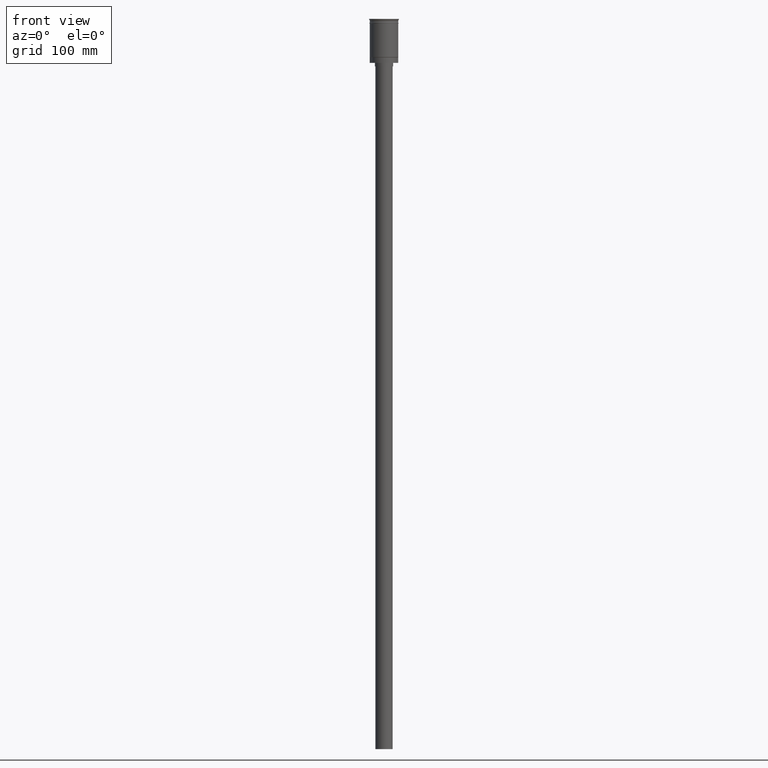
[diagram: clean part render]
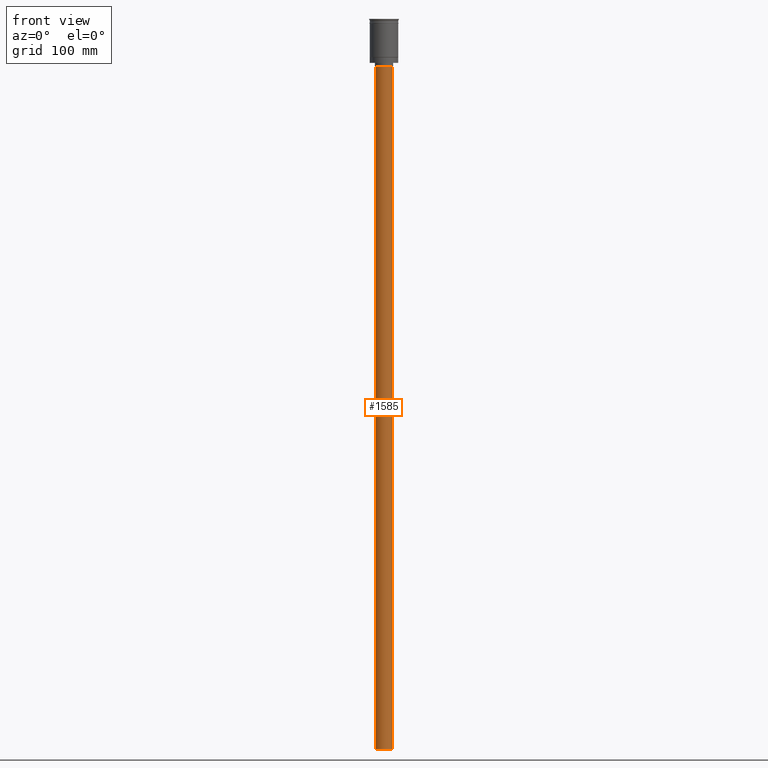
[diagram: same view with one face highlighted and labeled with its STEP entity id]
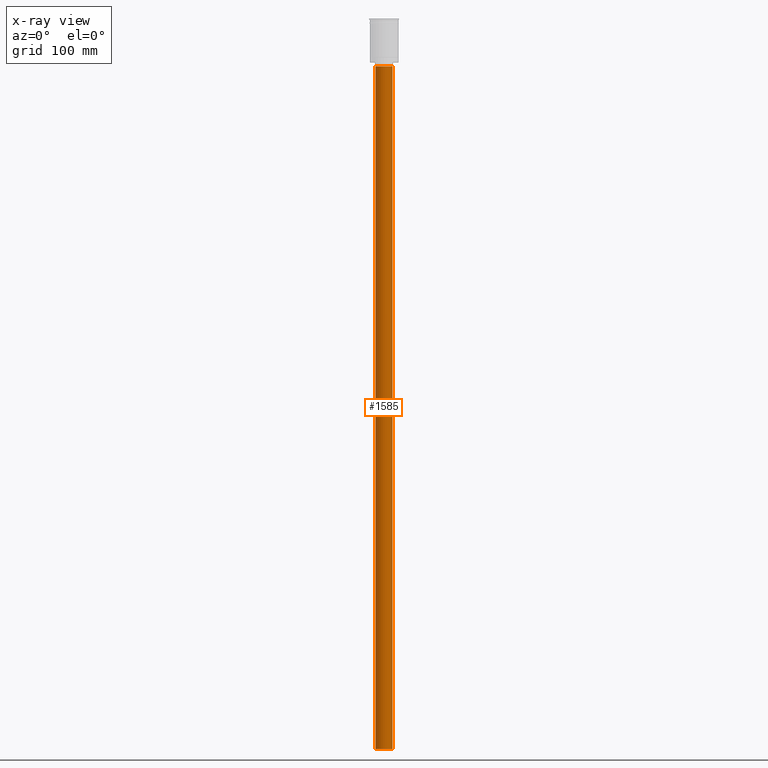
[diagram: x-ray of the same camera — body ghosted, the highlighted face saturated]
A machine part, front view. The second image highlights one B-rep face of the part: STEP entity #1585.
The next image is the same camera in x-ray: the body ghosted, the highlighted face saturated — about 0% of this face is hidden behind the body in this view.
In plain terms, the highlighted cylindrical surface (edge-blend (fillet) strip) has radius 7.5 mm, axis along (-0, -0, 1).
Its self-contained STEP definition (entity closure, byte-faithful):
#27 = AXIS2_PLACEMENT_3D ( 'NONE', #1118, #651, #541 ) ;
#35 = VERTEX_POINT ( 'NONE', #422 ) ;
#83 = DIRECTION ( 'NONE',  ( 1.000000000000000000, 0.000000000000000000, 0.000000000000000000 ) ) ;
#99 = CARTESIAN_POINT ( 'NONE',  ( -7.500000000000000000, 9.184850993605147944E-16, -41.50000000000000000 ) ) ;
#178 = EDGE_CURVE ( 'NONE', #599, #325, #388, .T. ) ;
#204 = DIRECTION ( 'NONE',  ( -1.000000000000000000, 0.000000000000000000, 0.000000000000000000 ) ) ;
#292 = AXIS2_PLACEMENT_3D ( 'NONE', #329, #1050, #83 ) ;
#295 = AXIS2_PLACEMENT_3D ( 'NONE', #1141, #899, #204 ) ;
#325 = VERTEX_POINT ( 'NONE', #99 ) ;
#329 = CARTESIAN_POINT ( 'NONE',  ( 0.000000000000000000, 0.000000000000000000, -638.5000000000000000 ) ) ;
#374 = ORIENTED_EDGE ( 'NONE', *, *, #539, .F. ) ;
#388 = CIRCLE ( 'NONE', #27, 7.500000000000000000 ) ;
#422 = CARTESIAN_POINT ( 'NONE',  ( 7.500000000000000000, 0.000000000000000000, -638.5000000000000000 ) ) ;
#445 = LINE ( 'NONE', #1164, #1383 ) ;
#464 = CIRCLE ( 'NONE', #295, 7.500000000000000000 ) ;
#513 = ORIENTED_EDGE ( 'NONE', *, *, #1117, .T. ) ;
#530 = DIRECTION ( 'NONE',  ( -0.000000000000000000, -0.000000000000000000, 1.000000000000000000 ) ) ;
#532 = EDGE_LOOP ( 'NONE', ( #374, #1395, #513, #647 ) ) ;
#539 = EDGE_CURVE ( 'NONE', #1194, #325, #1359, .T. ) ;
#541 = DIRECTION ( 'NONE',  ( -1.000000000000000000, 0.000000000000000000, 0.000000000000000000 ) ) ;
#599 = VERTEX_POINT ( 'NONE', #879 ) ;
#627 = CARTESIAN_POINT ( 'NONE',  ( -7.500000000000000000, 9.184850993605147944E-16, -638.5000000000000000 ) ) ;
#647 = ORIENTED_EDGE ( 'NONE', *, *, #178, .T. ) ;
#651 = DIRECTION ( 'NONE',  ( 0.000000000000000000, 0.000000000000000000, -1.000000000000000000 ) ) ;
#800 = DIRECTION ( 'NONE',  ( -0.000000000000000000, -0.000000000000000000, 1.000000000000000000 ) ) ;
#879 = CARTESIAN_POINT ( 'NONE',  ( 7.500000000000000000, 0.000000000000000000, -41.50000000000000000 ) ) ;
#899 = DIRECTION ( 'NONE',  ( 0.000000000000000000, 0.000000000000000000, -1.000000000000000000 ) ) ;
#1022 = EDGE_CURVE ( 'NONE', #35, #1194, #464, .T. ) ;
#1050 = DIRECTION ( 'NONE',  ( -0.000000000000000000, -0.000000000000000000, 1.000000000000000000 ) ) ;
#1080 = CYLINDRICAL_SURFACE ( 'NONE', #292, 7.500000000000000000 ) ;
#1083 = CARTESIAN_POINT ( 'NONE',  ( -7.500000000000000000, 9.184850993605147944E-16, -638.5000000000000000 ) ) ;
#1117 = EDGE_CURVE ( 'NONE', #35, #599, #445, .T. ) ;
#1118 = CARTESIAN_POINT ( 'NONE',  ( 0.000000000000000000, 0.000000000000000000, -41.50000000000000000 ) ) ;
#1141 = CARTESIAN_POINT ( 'NONE',  ( 0.000000000000000000, 0.000000000000000000, -638.5000000000000000 ) ) ;
#1164 = CARTESIAN_POINT ( 'NONE',  ( 7.500000000000000000, 0.000000000000000000, -638.5000000000000000 ) ) ;
#1194 = VERTEX_POINT ( 'NONE', #1083 ) ;
#1292 = FACE_OUTER_BOUND ( 'NONE', #532, .T. ) ;
#1359 = LINE ( 'NONE', #627, #1408 ) ;
#1383 = VECTOR ( 'NONE', #800, 1000.000000000000000 ) ;
#1395 = ORIENTED_EDGE ( 'NONE', *, *, #1022, .F. ) ;
#1408 = VECTOR ( 'NONE', #530, 1000.000000000000000 ) ;
#1585 = ADVANCED_FACE ( 'NONE', ( #1292 ), #1080, .T. ) ;